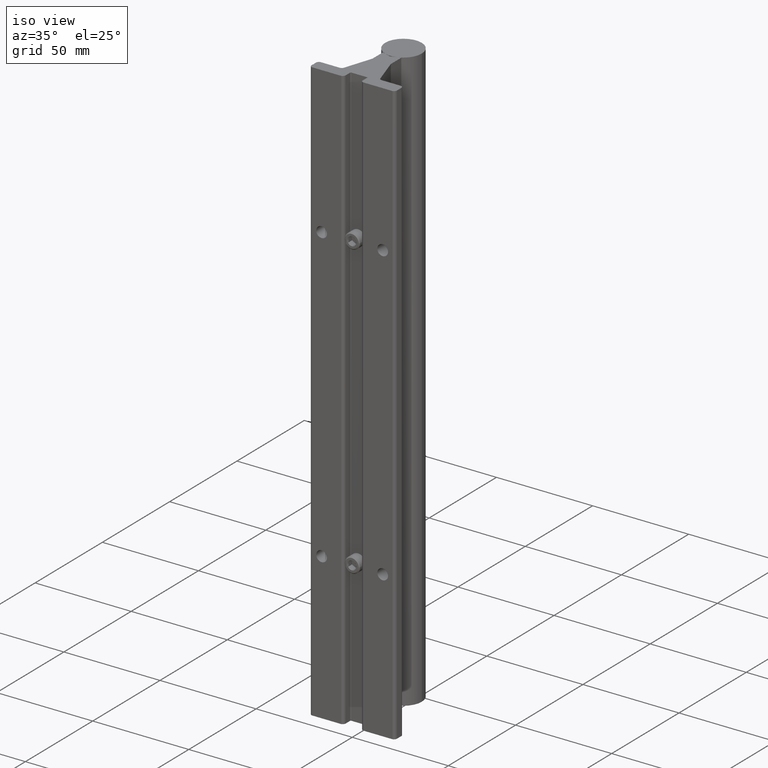
[diagram: clean part render]
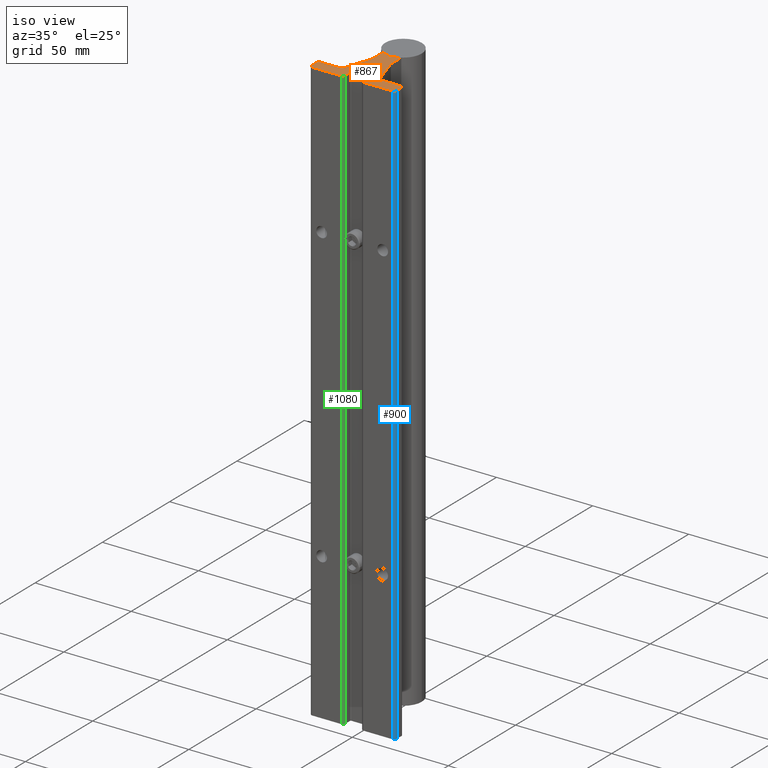
[diagram: same view with three faces highlighted in distinct colors, each labeled with its STEP entity id]
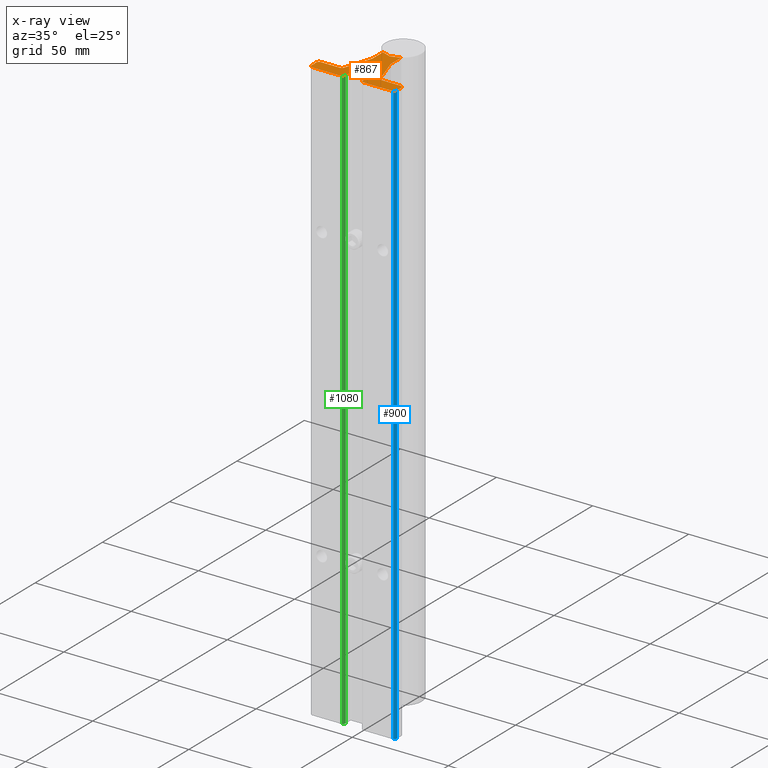
[diagram: x-ray of the same camera — body ghosted, the three highlighted faces saturated]
A machine part, iso view with three faces highlighted in distinct colors.
The next image is the same camera in x-ray (body ghosted, the three faces saturated) — at least one of them is partly hidden behind the body in this view.
Their STEP definitions:

[orange] entity #867 — the highlighted planar face has unit normal (0, 0, 1).
#21 = LINE ( 'NONE', #3294, #2389 ) ;
#28 = DIRECTION ( 'NONE',  ( 0.000000000000000000, 0.000000000000000000, 1.000000000000000000 ) ) ;
#42 = ORIENTED_EDGE ( 'NONE', *, *, #2733, .T. ) ;
#55 = EDGE_CURVE ( 'NONE', #2251, #2201, #3783, .T. ) ;
#61 = FACE_OUTER_BOUND ( 'NONE', #2354, .T. ) ;
#69 = VECTOR ( 'NONE', #1381, 39.37007874015748143 ) ;
#78 = ORIENTED_EDGE ( 'NONE', *, *, #3280, .T. ) ;
#80 = CIRCLE ( 'NONE', #2225, 0.06249999999999639871 ) ;
#85 = VERTEX_POINT ( 'NONE', #2269 ) ;
#87 = ORIENTED_EDGE ( 'NONE', *, *, #2049, .T. ) ;
#90 = EDGE_CURVE ( 'NONE', #2241, #1328, #3614, .T. ) ;
#98 = DIRECTION ( 'NONE',  ( -0.8660254037844274944, -0.5000000000000193179, 0.000000000000000000 ) ) ;
#124 = CARTESIAN_POINT ( 'NONE',  ( -0.2500000000000011657, 0.8712787930513303802, 0.000000000000000000 ) ) ;
#139 = EDGE_CURVE ( 'NONE', #3255, #2304, #594, .T. ) ;
#148 = ORIENTED_EDGE ( 'NONE', *, *, #1730, .T. ) ;
#193 = VERTEX_POINT ( 'NONE', #1819 ) ;
#226 = DIRECTION ( 'NONE',  ( 0.000000000000000000, 0.000000000000000000, 1.000000000000000000 ) ) ;
#227 = CARTESIAN_POINT ( 'NONE',  ( 0.8149999999999996136, 0.2500000000000001110, 0.000000000000000000 ) ) ;
#242 = CARTESIAN_POINT ( 'NONE',  ( -0.1875000000000001943, 1.169177754238574618, 0.000000000000000000 ) ) ;
#250 = LINE ( 'NONE', #3242, #2818 ) ;
#265 = VECTOR ( 'NONE', #3602, 39.37007874015748854 ) ;
#276 = PLANE ( 'NONE',  #3232 ) ;
#280 = AXIS2_PLACEMENT_3D ( 'NONE', #2549, #1981, #3764 ) ;
#288 = ORIENTED_EDGE ( 'NONE', *, *, #371, .T. ) ;
#323 = VECTOR ( 'NONE', #2297, 39.37007874015748143 ) ;
#325 = VERTEX_POINT ( 'NONE', #3253 ) ;
#349 = CARTESIAN_POINT ( 'NONE',  ( -0.8750000000000001110, 0.1399999999999997358, 0.000000000000000000 ) ) ;
#365 = DIRECTION ( 'NONE',  ( 1.000000000000000000, 0.000000000000000000, 0.000000000000000000 ) ) ;
#371 = EDGE_CURVE ( 'NONE', #431, #2137, #1003, .T. ) ;
#410 = EDGE_CURVE ( 'NONE', #2554, #3574, #3668, .T. ) ;
#431 = VERTEX_POINT ( 'NONE', #603 ) ;
#441 = EDGE_CURVE ( 'NONE', #753, #3348, #21, .T. ) ;
#458 = CARTESIAN_POINT ( 'NONE',  ( 0.2349999999999988487, 0.06000000000000004635, 0.000000000000000000 ) ) ;
#478 = LINE ( 'NONE', #2810, #3747 ) ;
#486 = EDGE_CURVE ( 'NONE', #325, #2300, #1384, .T. ) ;
#499 = CARTESIAN_POINT ( 'NONE',  ( -0.8255796188425061910, -1.195183497228115035E-16, 0.000000000000000000 ) ) ;
#550 = LINE ( 'NONE', #1431, #2635 ) ;
#554 = CARTESIAN_POINT ( 'NONE',  ( 0.3721172034999986056, 0.2931864378999994303, 0.000000000000000000 ) ) ;
#573 = EDGE_CURVE ( 'NONE', #2798, #2191, #694, .T. ) ;
#580 = LINE ( 'NONE', #1462, #3613 ) ;
#589 = CARTESIAN_POINT ( 'NONE',  ( 0.8255796188425064130, 0.000000000000000000, 0.000000000000000000 ) ) ;
#594 = LINE ( 'NONE', #2712, #265 ) ;
#603 = CARTESIAN_POINT ( 'NONE',  ( -0.2144787914004587515, 0.003618442752845930921, 0.000000000000000000 ) ) ;
#604 = CARTESIAN_POINT ( 'NONE',  ( -0.8650000000000009903, 0.1342264973081042367, 0.000000000000000000 ) ) ;
#623 = CARTESIAN_POINT ( 'NONE',  ( 0.1905589676999998316, 0.8519652309999988793, 0.000000000000000000 ) ) ;
#630 = AXIS2_PLACEMENT_3D ( 'NONE', #124, #3510, #2399 ) ;
#641 = CARTESIAN_POINT ( 'NONE',  ( -0.1749999999999992395, 0.1900000000000000300, -0.000000000000000000 ) ) ;
#661 = DIRECTION ( 'NONE',  ( 1.000000000000000000, 0.000000000000000000, 0.000000000000000000 ) ) ;
#694 = CIRCLE ( 'NONE', #630, 0.06250000000000069389 ) ;
#724 = DIRECTION ( 'NONE',  ( -0.000000000000000000, -0.000000000000000000, -1.000000000000000000 ) ) ;
#734 = DIRECTION ( 'NONE',  ( 0.000000000000000000, 0.000000000000000000, 1.000000000000000000 ) ) ;
#753 = VERTEX_POINT ( 'NONE', #499 ) ;
#760 = CARTESIAN_POINT ( 'NONE',  ( -0.1875000000000004718, 0.8712787932000009006, 0.000000000000000000 ) ) ;
#798 = CARTESIAN_POINT ( 'NONE',  ( 0.1749999999999989619, 0.06000000000000004635, 0.000000000000000000 ) ) ;
#821 = VERTEX_POINT ( 'NONE', #1579 ) ;
#841 = ORIENTED_EDGE ( 'NONE', *, *, #2943, .T. ) ;
#843 = DIRECTION ( 'NONE',  ( -0.3090169945051225442, 0.9510565162528571426, 0.000000000000000000 ) ) ;
#848 = LINE ( 'NONE', #242, #1660 ) ;
#867 = ADVANCED_FACE ( 'NONE', ( #61 ), #276, .T. ) ;
#886 = EDGE_CURVE ( 'NONE', #2201, #193, #1158, .T. ) ;
#904 = DIRECTION ( 'NONE',  ( 0.9396926207859096492, -0.3420201433256652712, 0.000000000000000000 ) ) ;
#945 = CARTESIAN_POINT ( 'NONE',  ( -0.8650000000000009903, 0.1342264973081042645, 0.000000000000000000 ) ) ;
#960 = CARTESIAN_POINT ( 'NONE',  ( 0.2144787914004595564, 0.003618442752845444331, 0.000000000000000000 ) ) ;
#999 = DIRECTION ( 'NONE',  ( 4.202843067175790113E-15, 1.000000000000000000, 0.000000000000000000 ) ) ;
#1001 = EDGE_CURVE ( 'NONE', #3348, #431, #1094, .T. ) ;
#1003 = CIRCLE ( 'NONE', #3479, 0.05999999999999983818 ) ;
#1025 = DIRECTION ( 'NONE',  ( -0.000000000000000000, -0.000000000000000000, -1.000000000000000000 ) ) ;
#1026 = EDGE_CURVE ( 'NONE', #3059, #3775, #1366, .T. ) ;
#1031 = CARTESIAN_POINT ( 'NONE',  ( -0.8750000000000001110, 0.1900000000000000300, 0.000000000000000000 ) ) ;
#1049 = CARTESIAN_POINT ( 'NONE',  ( -0.2244203811574920215, 0.000000000000000000, 0.000000000000000000 ) ) ;
#1051 = DIRECTION ( 'NONE',  ( 1.000000000000000000, 0.000000000000000000, 0.000000000000000000 ) ) ;
#1056 = DIRECTION ( 'NONE',  ( 2.626776916984868919E-15, 1.000000000000000000, 0.000000000000000000 ) ) ;
#1064 = CARTESIAN_POINT ( 'NONE',  ( -2.500000000000000000, 0.000000000000000000, 0.000000000000000000 ) ) ;
#1086 = VECTOR ( 'NONE', #999, 39.37007874015748143 ) ;
#1089 = DIRECTION ( 'NONE',  ( 1.000000000000000000, 0.000000000000000000, 0.000000000000000000 ) ) ;
#1094 = LINE ( 'NONE', #1049, #2028 ) ;
#1096 = VECTOR ( 'NONE', #1435, 39.37007874015748143 ) ;
#1123 = EDGE_CURVE ( 'NONE', #821, #3255, #580, .T. ) ;
#1145 = AXIS2_PLACEMENT_3D ( 'NONE', #1421, #226, #1378 ) ;
#1155 = LINE ( 'NONE', #3203, #2716 ) ;
#1158 = LINE ( 'NONE', #589, #1197 ) ;
#1197 = VECTOR ( 'NONE', #2758, 39.37007874015748143 ) ;
#1201 = CIRCLE ( 'NONE', #1145, 0.05999999999999990757 ) ;
#1208 = VECTOR ( 'NONE', #2058, 39.37007874015748143 ) ;
#1212 = VECTOR ( 'NONE', #904, 39.37007874015748854 ) ;
#1216 = CARTESIAN_POINT ( 'NONE',  ( -0.1599999999999985600, 0.1900000000000000300, 0.000000000000000000 ) ) ;
#1218 = CARTESIAN_POINT ( 'NONE',  ( -0.4315582356841831668, 0.3125000000000001665, 0.000000000000000000 ) ) ;
#1280 = CARTESIAN_POINT ( 'NONE',  ( 0.8149999999999996136, 0.2500000000000001110, 0.000000000000000000 ) ) ;
#1284 = VERTEX_POINT ( 'NONE', #3365 ) ;
#1295 = ORIENTED_EDGE ( 'NONE', *, *, #2620, .T. ) ;
#1306 = VECTOR ( 'NONE', #1925, 39.37007874015748143 ) ;
#1319 = VECTOR ( 'NONE', #2481, 39.37007874015748143 ) ;
#1323 = ORIENTED_EDGE ( 'NONE', *, *, #486, .T. ) ;
#1328 = VERTEX_POINT ( 'NONE', #1280 ) ;
#1333 = CIRCLE ( 'NONE', #2154, 0.05999999999999983818 ) ;
#1351 = DIRECTION ( 'NONE',  ( -0.000000000000000000, -0.000000000000000000, -1.000000000000000000 ) ) ;
#1360 = LINE ( 'NONE', #2678, #1208 ) ;
#1362 = CARTESIAN_POINT ( 'NONE',  ( -0.2349999999999994038, 0.06000000000000004635, 0.000000000000000000 ) ) ;
#1366 = LINE ( 'NONE', #1031, #323 ) ;
#1378 = DIRECTION ( 'NONE',  ( 1.000000000000000000, 0.000000000000000000, 0.000000000000000000 ) ) ;
#1381 = DIRECTION ( 'NONE',  ( 1.000000000000000000, 0.000000000000000000, 0.000000000000000000 ) ) ;
#1384 = CIRCLE ( 'NONE', #2910, 0.05999999999999990757 ) ;
#1388 = EDGE_CURVE ( 'NONE', #3690, #2173, #3874, .T. ) ;
#1397 = ORIENTED_EDGE ( 'NONE', *, *, #1123, .T. ) ;
#1416 = DIRECTION ( 'NONE',  ( 0.8660254037844480335, -0.4999999999999838463, 0.000000000000000000 ) ) ;
#1421 = CARTESIAN_POINT ( 'NONE',  ( 0.8149999999999993916, 0.06000000000000004635, 0.000000000000000000 ) ) ;
#1431 = CARTESIAN_POINT ( 'NONE',  ( 0.3721172034999985501, 0.2931864378999994303, 0.000000000000000000 ) ) ;
#1435 = DIRECTION ( 'NONE',  ( -1.000000000000000000, 2.671704266472630380E-16, 0.000000000000000000 ) ) ;
#1456 = CIRCLE ( 'NONE', #2152, 0.06250000000000151268 ) ;
#1458 = EDGE_CURVE ( 'NONE', #3565, #1970, #1456, .T. ) ;
#1462 = CARTESIAN_POINT ( 'NONE',  ( 0.1874999999999998335, 0.8712787932000009006, 0.000000000000000000 ) ) ;
#1468 = CARTESIAN_POINT ( 'NONE',  ( -0.8355212085995393778, 0.003618442752845341982, 0.000000000000000000 ) ) ;
#1491 = CARTESIAN_POINT ( 'NONE',  ( -0.1599999999999985600, 0.2050000000000006262, 0.000000000000000000 ) ) ;
#1542 = CARTESIAN_POINT ( 'NONE',  ( 0.8255796188425067461, 0.000000000000000000, 0.000000000000000000 ) ) ;
#1555 = VERTEX_POINT ( 'NONE', #798 ) ;
#1565 = DIRECTION ( 'NONE',  ( -0.000000000000000000, -0.000000000000000000, -1.000000000000000000 ) ) ;
#1576 = AXIS2_PLACEMENT_3D ( 'NONE', #3489, #1982, #1089 ) ;
#1579 = CARTESIAN_POINT ( 'NONE',  ( 0.1874999999999998335, 0.8712787932000009006, 0.000000000000000000 ) ) ;
#1588 = CARTESIAN_POINT ( 'NONE',  ( -0.8150000000000001688, 0.2499999999999999167, 0.000000000000000000 ) ) ;
#1598 = DIRECTION ( 'NONE',  ( 0.000000000000000000, 0.000000000000000000, 1.000000000000000000 ) ) ;
#1610 = LINE ( 'NONE', #2791, #3680 ) ;
#1645 = VERTEX_POINT ( 'NONE', #1737 ) ;
#1647 = CARTESIAN_POINT ( 'NONE',  ( -0.8355212085995393778, 0.003618442752845316395, 0.000000000000000000 ) ) ;
#1656 = ORIENTED_EDGE ( 'NONE', *, *, #139, .T. ) ;
#1660 = VECTOR ( 'NONE', #2324, 39.37007874015748143 ) ;
#1676 = LINE ( 'NONE', #3720, #1086 ) ;
#1690 = CARTESIAN_POINT ( 'NONE',  ( 0.8749999999999992228, 0.06000000000000004635, 0.000000000000000000 ) ) ;
#1717 = CIRCLE ( 'NONE', #3300, 0.01500000000000062568 ) ;
#1730 = EDGE_CURVE ( 'NONE', #3797, #3041, #1717, .T. ) ;
#1737 = CARTESIAN_POINT ( 'NONE',  ( 0.2144787914004595564, 0.003618442752845393157, 0.000000000000000000 ) ) ;
#1760 = LINE ( 'NONE', #1468, #2042 ) ;
#1773 = CARTESIAN_POINT ( 'NONE',  ( -0.8750000000000002220, 0.1099999999999997785, 0.000000000000000000 ) ) ;
#1780 = DIRECTION ( 'NONE',  ( 1.000000000000000000, 0.000000000000000000, 0.000000000000000000 ) ) ;
#1819 = CARTESIAN_POINT ( 'NONE',  ( 0.8355212085995401550, 0.003618442752845948268, 0.000000000000000000 ) ) ;
#1855 = ORIENTED_EDGE ( 'NONE', *, *, #1458, .T. ) ;
#1870 = EDGE_CURVE ( 'NONE', #2500, #2241, #1676, .T. ) ;
#1876 = ORIENTED_EDGE ( 'NONE', *, *, #1001, .T. ) ;
#1888 = ORIENTED_EDGE ( 'NONE', *, *, #90, .T. ) ;
#1892 = EDGE_CURVE ( 'NONE', #3574, #2891, #1610, .T. ) ;
#1906 = ORIENTED_EDGE ( 'NONE', *, *, #3161, .T. ) ;
#1925 = DIRECTION ( 'NONE',  ( -1.000000000000000000, -3.027931502002314364E-15, 0.000000000000000000 ) ) ;
#1933 = CARTESIAN_POINT ( 'NONE',  ( -2.731847993664263218E-16, 1.100933335338573960, 0.000000000000000000 ) ) ;
#1936 = DIRECTION ( 'NONE',  ( 1.000000000000000000, 0.000000000000000000, 0.000000000000000000 ) ) ;
#1946 = EDGE_CURVE ( 'NONE', #2304, #85, #2519, .T. ) ;
#1948 = DIRECTION ( 'NONE',  ( 1.000000000000000000, 0.000000000000000000, 0.000000000000000000 ) ) ;
#1970 = VERTEX_POINT ( 'NONE', #554 ) ;
#1973 = DIRECTION ( 'NONE',  ( 0.000000000000000000, 0.000000000000000000, 1.000000000000000000 ) ) ;
#1981 = DIRECTION ( 'NONE',  ( 0.000000000000000000, 0.000000000000000000, 1.000000000000000000 ) ) ;
#1982 = DIRECTION ( 'NONE',  ( 0.000000000000000000, 0.000000000000000000, 1.000000000000000000 ) ) ;
#1986 = ORIENTED_EDGE ( 'NONE', *, *, #55, .T. ) ;
#1992 = CARTESIAN_POINT ( 'NONE',  ( -0.3721172034000003737, 0.2931864378999993193, 0.000000000000000000 ) ) ;
#2023 = ORIENTED_EDGE ( 'NONE', *, *, #3610, .T. ) ;
#2028 = VECTOR ( 'NONE', #2532, 39.37007874015748143 ) ;
#2042 = VECTOR ( 'NONE', #3651, 39.37007874015748143 ) ;
#2049 = EDGE_CURVE ( 'NONE', #193, #2500, #1201, .T. ) ;
#2058 = DIRECTION ( 'NONE',  ( 3.152132300381842388E-15, -1.000000000000000000, 0.000000000000000000 ) ) ;
#2099 = CARTESIAN_POINT ( 'NONE',  ( 0.1599999999999980327, 0.2050000000000004041, 0.000000000000000000 ) ) ;
#2101 = AXIS2_PLACEMENT_3D ( 'NONE', #3121, #724, #365 ) ;
#2137 = VERTEX_POINT ( 'NONE', #2709 ) ;
#2145 = CARTESIAN_POINT ( 'NONE',  ( -0.2244203811574921603, 0.000000000000000000, 0.000000000000000000 ) ) ;
#2152 = AXIS2_PLACEMENT_3D ( 'NONE', #2846, #1025, #2871 ) ;
#2154 = AXIS2_PLACEMENT_3D ( 'NONE', #458, #1973, #1948 ) ;
#2173 = VERTEX_POINT ( 'NONE', #2456 ) ;
#2174 = VERTEX_POINT ( 'NONE', #623 ) ;
#2183 = CARTESIAN_POINT ( 'NONE',  ( -2.731847993664263218E-16, 1.100933335338573960, 0.000000000000000000 ) ) ;
#2191 = VERTEX_POINT ( 'NONE', #3319 ) ;
#2201 = VERTEX_POINT ( 'NONE', #1542 ) ;
#2219 = ORIENTED_EDGE ( 'NONE', *, *, #410, .T. ) ;
#2225 = AXIS2_PLACEMENT_3D ( 'NONE', #3587, #1351, #1051 ) ;
#2241 = VERTEX_POINT ( 'NONE', #3003 ) ;
#2251 = VERTEX_POINT ( 'NONE', #3021 ) ;
#2266 = CARTESIAN_POINT ( 'NONE',  ( -0.1599999999999985600, 0.2050000000000006539, 0.000000000000000000 ) ) ;
#2269 = CARTESIAN_POINT ( 'NONE',  ( -0.1875000000000001943, 1.169177754238574618, 0.000000000000000000 ) ) ;
#2296 = ORIENTED_EDGE ( 'NONE', *, *, #3505, .T. ) ;
#2297 = DIRECTION ( 'NONE',  ( 0.000000000000000000, -1.000000000000000000, 0.000000000000000000 ) ) ;
#2300 = VERTEX_POINT ( 'NONE', #1647 ) ;
#2304 = VERTEX_POINT ( 'NONE', #2183 ) ;
#2324 = DIRECTION ( 'NONE',  ( -9.170384428801442724E-16, -1.000000000000000000, 0.000000000000000000 ) ) ;
#2354 = EDGE_LOOP ( 'NONE', ( #1295, #3214, #1876, #288, #2296, #148, #2953, #42, #2433, #3192, #2475, #1986, #3198, #87, #2840, #1888, #78, #1855, #2023, #2562, #1397, #1656, #3635, #2996, #3743, #841, #3397, #3827, #1906, #3363, #2507, #2219, #3921, #3712, #1323 ) ) ;
#2376 = CARTESIAN_POINT ( 'NONE',  ( -0.8150000000000001688, 0.06000000000000004635, 0.000000000000000000 ) ) ;
#2389 = VECTOR ( 'NONE', #1780, 39.37007874015748143 ) ;
#2399 = DIRECTION ( 'NONE',  ( 1.000000000000000000, 0.000000000000000000, 0.000000000000000000 ) ) ;
#2424 = EDGE_CURVE ( 'NONE', #3775, #2554, #1155, .T. ) ;
#2425 = DIRECTION ( 'NONE',  ( 1.000000000000000000, 0.000000000000000000, 0.000000000000000000 ) ) ;
#2433 = ORIENTED_EDGE ( 'NONE', *, *, #3212, .T. ) ;
#2456 = CARTESIAN_POINT ( 'NONE',  ( -0.4315582357000016800, 0.2500000000000011657, 0.000000000000000000 ) ) ;
#2459 = DIRECTION ( 'NONE',  ( 1.000000000000000000, 0.000000000000000000, 0.000000000000000000 ) ) ;
#2461 = CARTESIAN_POINT ( 'NONE',  ( -0.1905589677000024129, 0.8519652309999998785, 0.000000000000000000 ) ) ;
#2465 = VECTOR ( 'NONE', #3146, 39.37007874015748854 ) ;
#2475 = ORIENTED_EDGE ( 'NONE', *, *, #3431, .T. ) ;
#2481 = DIRECTION ( 'NONE',  ( 1.000000000000000000, -6.402768735150685389E-16, 0.000000000000000000 ) ) ;
#2500 = VERTEX_POINT ( 'NONE', #1690 ) ;
#2507 = ORIENTED_EDGE ( 'NONE', *, *, #2424, .T. ) ;
#2519 = LINE ( 'NONE', #1933, #2465 ) ;
#2532 = DIRECTION ( 'NONE',  ( 0.9396926207859066515, 0.3420201433256734314, 0.000000000000000000 ) ) ;
#2549 = CARTESIAN_POINT ( 'NONE',  ( -0.8150000000000001688, 0.1900000000000000300, 0.000000000000000000 ) ) ;
#2554 = VERTEX_POINT ( 'NONE', #604 ) ;
#2558 = CARTESIAN_POINT ( 'NONE',  ( -0.4315582357000016800, 0.2500000000000011102, 0.000000000000000000 ) ) ;
#2562 = ORIENTED_EDGE ( 'NONE', *, *, #2870, .T. ) ;
#2611 = CIRCLE ( 'NONE', #280, 0.05999999999999990757 ) ;
#2620 = EDGE_CURVE ( 'NONE', #2300, #753, #1760, .T. ) ;
#2634 = DIRECTION ( 'NONE',  ( 0.000000000000000000, -1.000000000000000000, 0.000000000000000000 ) ) ;
#2635 = VECTOR ( 'NONE', #843, 39.37007874015748854 ) ;
#2645 = VECTOR ( 'NONE', #2995, 39.37007874015748143 ) ;
#2678 = CARTESIAN_POINT ( 'NONE',  ( 0.1749999999999985456, 0.1900000000000000300, 0.000000000000000000 ) ) ;
#2709 = CARTESIAN_POINT ( 'NONE',  ( -0.1749999999999995726, 0.06000000000000004635, 0.000000000000000000 ) ) ;
#2712 = CARTESIAN_POINT ( 'NONE',  ( 0.1874999999999996947, 1.169177754238574174, 0.000000000000000000 ) ) ;
#2716 = VECTOR ( 'NONE', #1416, 39.37007874015748143 ) ;
#2733 = EDGE_CURVE ( 'NONE', #2814, #1284, #3245, .T. ) ;
#2758 = DIRECTION ( 'NONE',  ( 0.9396926207859090940, 0.3420201433256666590, 0.000000000000000000 ) ) ;
#2781 = DIRECTION ( 'NONE',  ( 1.000000000000000000, 0.000000000000000000, -0.000000000000000000 ) ) ;
#2784 = LINE ( 'NONE', #2558, #1306 ) ;
#2791 = CARTESIAN_POINT ( 'NONE',  ( -0.8650000000000009903, 0.1157735026918958049, 0.000000000000000000 ) ) ;
#2798 = VERTEX_POINT ( 'NONE', #760 ) ;
#2810 = CARTESIAN_POINT ( 'NONE',  ( -0.1749999999999995726, 0.06000000000000004635, 0.000000000000000000 ) ) ;
#2814 = VERTEX_POINT ( 'NONE', #2099 ) ;
#2818 = VECTOR ( 'NONE', #2634, 39.37007874015748143 ) ;
#2840 = ORIENTED_EDGE ( 'NONE', *, *, #1870, .T. ) ;
#2846 = CARTESIAN_POINT ( 'NONE',  ( 0.4315582357841835637, 0.3125000000000017764, 0.000000000000000000 ) ) ;
#2861 = CARTESIAN_POINT ( 'NONE',  ( -0.8650000000000009903, 0.1157735026918958049, 0.000000000000000000 ) ) ;
#2870 = EDGE_CURVE ( 'NONE', #2174, #821, #80, .T. ) ;
#2871 = DIRECTION ( 'NONE',  ( 1.000000000000000000, 0.000000000000000000, 0.000000000000000000 ) ) ;
#2891 = VERTEX_POINT ( 'NONE', #1773 ) ;
#2910 = AXIS2_PLACEMENT_3D ( 'NONE', #2376, #28, #661 ) ;
#2943 = EDGE_CURVE ( 'NONE', #2191, #3690, #3340, .T. ) ;
#2953 = ORIENTED_EDGE ( 'NONE', *, *, #2986, .T. ) ;
#2961 = LINE ( 'NONE', #227, #1096 ) ;
#2986 = EDGE_CURVE ( 'NONE', #3041, #2814, #3682, .T. ) ;
#2995 = DIRECTION ( 'NONE',  ( 0.000000000000000000, -1.000000000000000000, 0.000000000000000000 ) ) ;
#2996 = ORIENTED_EDGE ( 'NONE', *, *, #3312, .T. ) ;
#3003 = CARTESIAN_POINT ( 'NONE',  ( 0.8749999999999997780, 0.1900000000000000300, 0.000000000000000000 ) ) ;
#3021 = CARTESIAN_POINT ( 'NONE',  ( 0.2244203811574911334, 1.109813247426106994E-16, 0.000000000000000000 ) ) ;
#3041 = VERTEX_POINT ( 'NONE', #2266 ) ;
#3050 = DIRECTION ( 'NONE',  ( -0.000000000000000000, -0.000000000000000000, -1.000000000000000000 ) ) ;
#3059 = VERTEX_POINT ( 'NONE', #3147 ) ;
#3121 = CARTESIAN_POINT ( 'NONE',  ( 0.1599999999999980327, 0.1900000000000000300, 0.000000000000000000 ) ) ;
#3146 = DIRECTION ( 'NONE',  ( -0.9396926208260354407, 0.3420201432154202914, 0.000000000000000000 ) ) ;
#3147 = CARTESIAN_POINT ( 'NONE',  ( -0.8750000000000001110, 0.1900000000000000300, 0.000000000000000000 ) ) ;
#3161 = EDGE_CURVE ( 'NONE', #3542, #3059, #2611, .T. ) ;
#3192 = ORIENTED_EDGE ( 'NONE', *, *, #3506, .T. ) ;
#3198 = ORIENTED_EDGE ( 'NONE', *, *, #886, .T. ) ;
#3203 = CARTESIAN_POINT ( 'NONE',  ( -0.8750000000000001110, 0.1399999999999997358, 0.000000000000000000 ) ) ;
#3212 = EDGE_CURVE ( 'NONE', #1284, #1555, #1360, .T. ) ;
#3214 = ORIENTED_EDGE ( 'NONE', *, *, #441, .T. ) ;
#3232 = AXIS2_PLACEMENT_3D ( 'NONE', #3597, #1598, #2781 ) ;
#3242 = CARTESIAN_POINT ( 'NONE',  ( -0.8750000000000001110, 0.1099999999999997785, 0.000000000000000000 ) ) ;
#3245 = CIRCLE ( 'NONE', #2101, 0.01500000000000045394 ) ;
#3253 = CARTESIAN_POINT ( 'NONE',  ( -0.8750000000000001110, 0.06000000000000004635, 0.000000000000000000 ) ) ;
#3255 = VERTEX_POINT ( 'NONE', #3545 ) ;
#3280 = EDGE_CURVE ( 'NONE', #1328, #3565, #2961, .T. ) ;
#3294 = CARTESIAN_POINT ( 'NONE',  ( -2.500000000000000000, 0.000000000000000000, 0.000000000000000000 ) ) ;
#3300 = AXIS2_PLACEMENT_3D ( 'NONE', #1216, #1565, #2459 ) ;
#3312 = EDGE_CURVE ( 'NONE', #85, #2798, #848, .T. ) ;
#3319 = CARTESIAN_POINT ( 'NONE',  ( -0.1905589677000024129, 0.8519652309999998785, 0.000000000000000000 ) ) ;
#3340 = LINE ( 'NONE', #2461, #3538 ) ;
#3348 = VERTEX_POINT ( 'NONE', #2145 ) ;
#3363 = ORIENTED_EDGE ( 'NONE', *, *, #1026, .T. ) ;
#3365 = CARTESIAN_POINT ( 'NONE',  ( 0.1749999999999984623, 0.1900000000000000300, 0.000000000000000000 ) ) ;
#3384 = DIRECTION ( 'NONE',  ( -0.3090169943511710260, -0.9510565163028790181, 0.000000000000000000 ) ) ;
#3397 = ORIENTED_EDGE ( 'NONE', *, *, #1388, .T. ) ;
#3431 = EDGE_CURVE ( 'NONE', #1645, #2251, #3623, .T. ) ;
#3479 = AXIS2_PLACEMENT_3D ( 'NONE', #1362, #734, #1936 ) ;
#3489 = CARTESIAN_POINT ( 'NONE',  ( 0.8149999999999996136, 0.1900000000000000300, 0.000000000000000000 ) ) ;
#3505 = EDGE_CURVE ( 'NONE', #2137, #3797, #478, .T. ) ;
#3506 = EDGE_CURVE ( 'NONE', #1555, #1645, #1333, .T. ) ;
#3510 = DIRECTION ( 'NONE',  ( -0.000000000000000000, -0.000000000000000000, -1.000000000000000000 ) ) ;
#3538 = VECTOR ( 'NONE', #3384, 39.37007874015748143 ) ;
#3542 = VERTEX_POINT ( 'NONE', #1588 ) ;
#3545 = CARTESIAN_POINT ( 'NONE',  ( 0.1874999999999996947, 1.169177754238574396, 0.000000000000000000 ) ) ;
#3556 = AXIS2_PLACEMENT_3D ( 'NONE', #1218, #3050, #2425 ) ;
#3565 = VERTEX_POINT ( 'NONE', #3701 ) ;
#3573 = DIRECTION ( 'NONE',  ( -4.585192214400725306E-16, 1.000000000000000000, 0.000000000000000000 ) ) ;
#3574 = VERTEX_POINT ( 'NONE', #2861 ) ;
#3587 = CARTESIAN_POINT ( 'NONE',  ( 0.2499999999999962530, 0.8712787930513227197, 0.000000000000000000 ) ) ;
#3597 = CARTESIAN_POINT ( 'NONE',  ( 0.000000000000000000, 0.000000000000000000, 0.000000000000000000 ) ) ;
#3602 = DIRECTION ( 'NONE',  ( -0.9396926208260359958, -0.3420201432154190146, 0.000000000000000000 ) ) ;
#3610 = EDGE_CURVE ( 'NONE', #1970, #2174, #550, .T. ) ;
#3613 = VECTOR ( 'NONE', #3573, 39.37007874015748143 ) ;
#3614 = CIRCLE ( 'NONE', #1576, 0.06000000000000017819 ) ;
#3623 = LINE ( 'NONE', #960, #1212 ) ;
#3635 = ORIENTED_EDGE ( 'NONE', *, *, #1946, .T. ) ;
#3646 = EDGE_CURVE ( 'NONE', #2891, #325, #250, .T. ) ;
#3651 = DIRECTION ( 'NONE',  ( 0.9396926207859157554, -0.3420201433256484513, 0.000000000000000000 ) ) ;
#3668 = LINE ( 'NONE', #945, #2645 ) ;
#3680 = VECTOR ( 'NONE', #98, 39.37007874015748854 ) ;
#3682 = LINE ( 'NONE', #1491, #1319 ) ;
#3690 = VERTEX_POINT ( 'NONE', #1992 ) ;
#3701 = CARTESIAN_POINT ( 'NONE',  ( 0.4315582357000011249, 0.2500000000000002776, 0.000000000000000000 ) ) ;
#3712 = ORIENTED_EDGE ( 'NONE', *, *, #3646, .T. ) ;
#3720 = CARTESIAN_POINT ( 'NONE',  ( 0.8749999999999992228, 0.06000000000000004635, 0.000000000000000000 ) ) ;
#3743 = ORIENTED_EDGE ( 'NONE', *, *, #573, .T. ) ;
#3747 = VECTOR ( 'NONE', #1056, 39.37007874015748143 ) ;
#3764 = DIRECTION ( 'NONE',  ( 1.000000000000000000, 0.000000000000000000, 0.000000000000000000 ) ) ;
#3775 = VERTEX_POINT ( 'NONE', #349 ) ;
#3783 = LINE ( 'NONE', #1064, #69 ) ;
#3797 = VERTEX_POINT ( 'NONE', #641 ) ;
#3827 = ORIENTED_EDGE ( 'NONE', *, *, #3856, .T. ) ;
#3856 = EDGE_CURVE ( 'NONE', #2173, #3542, #2784, .T. ) ;
#3874 = CIRCLE ( 'NONE', #3556, 0.06249999999999892447 ) ;
#3921 = ORIENTED_EDGE ( 'NONE', *, *, #1892, .T. ) ;

[blue] entity #900 — the highlighted cylindrical surface (edge-blend (fillet) strip) has radius 1.524 mm, axis along (0, 0, 1).
#8 = EDGE_CURVE ( 'NONE', #125, #2500, #2610, .T. ) ;
#115 = DIRECTION ( 'NONE',  ( 1.000000000000000000, 0.000000000000000000, 0.000000000000000000 ) ) ;
#125 = VERTEX_POINT ( 'NONE', #3528 ) ;
#193 = VERTEX_POINT ( 'NONE', #1819 ) ;
#226 = DIRECTION ( 'NONE',  ( 0.000000000000000000, 0.000000000000000000, 1.000000000000000000 ) ) ;
#228 = EDGE_CURVE ( 'NONE', #1809, #193, #314, .T. ) ;
#238 = EDGE_CURVE ( 'NONE', #125, #1809, #2517, .T. ) ;
#281 = CARTESIAN_POINT ( 'NONE',  ( 0.8355212085995401550, 0.003618442752846007682, -14.10463218188033174 ) ) ;
#314 = LINE ( 'NONE', #281, #756 ) ;
#324 = EDGE_LOOP ( 'NONE', ( #3110, #2007, #3223, #2298 ) ) ;
#704 = CARTESIAN_POINT ( 'NONE',  ( 0.8149999999999993916, 0.06000000000000004635, -12.00000000000000178 ) ) ;
#756 = VECTOR ( 'NONE', #3569, 39.37007874015748143 ) ;
#824 = AXIS2_PLACEMENT_3D ( 'NONE', #704, #1608, #115 ) ;
#900 = ADVANCED_FACE ( 'NONE', ( #989 ), #970, .T. ) ;
#970 = CYLINDRICAL_SURFACE ( 'NONE', #3736, 0.05999999999999990757 ) ;
#989 = FACE_OUTER_BOUND ( 'NONE', #324, .T. ) ;
#1145 = AXIS2_PLACEMENT_3D ( 'NONE', #1421, #226, #1378 ) ;
#1201 = CIRCLE ( 'NONE', #1145, 0.05999999999999990757 ) ;
#1378 = DIRECTION ( 'NONE',  ( 1.000000000000000000, 0.000000000000000000, 0.000000000000000000 ) ) ;
#1421 = CARTESIAN_POINT ( 'NONE',  ( 0.8149999999999993916, 0.06000000000000004635, 0.000000000000000000 ) ) ;
#1608 = DIRECTION ( 'NONE',  ( -0.000000000000000000, -0.000000000000000000, -1.000000000000000000 ) ) ;
#1678 = DIRECTION ( 'NONE',  ( 0.000000000000000000, 0.000000000000000000, 1.000000000000000000 ) ) ;
#1690 = CARTESIAN_POINT ( 'NONE',  ( 0.8749999999999992228, 0.06000000000000004635, 0.000000000000000000 ) ) ;
#1786 = DIRECTION ( 'NONE',  ( 0.000000000000000000, 0.000000000000000000, 1.000000000000000000 ) ) ;
#1809 = VERTEX_POINT ( 'NONE', #3168 ) ;
#1819 = CARTESIAN_POINT ( 'NONE',  ( 0.8355212085995401550, 0.003618442752845948268, 0.000000000000000000 ) ) ;
#2007 = ORIENTED_EDGE ( 'NONE', *, *, #8, .T. ) ;
#2049 = EDGE_CURVE ( 'NONE', #193, #2500, #1201, .T. ) ;
#2157 = DIRECTION ( 'NONE',  ( 1.000000000000000000, 0.000000000000000000, 0.000000000000000000 ) ) ;
#2177 = CARTESIAN_POINT ( 'NONE',  ( 0.8149999999999993916, 0.06000000000000004635, -14.10463218188033174 ) ) ;
#2298 = ORIENTED_EDGE ( 'NONE', *, *, #228, .F. ) ;
#2500 = VERTEX_POINT ( 'NONE', #1690 ) ;
#2517 = CIRCLE ( 'NONE', #824, 0.05999999999999990757 ) ;
#2610 = LINE ( 'NONE', #3249, #3491 ) ;
#3110 = ORIENTED_EDGE ( 'NONE', *, *, #238, .F. ) ;
#3168 = CARTESIAN_POINT ( 'NONE',  ( 0.8355212085995401550, 0.003618442752846028065, -12.00000000000000178 ) ) ;
#3223 = ORIENTED_EDGE ( 'NONE', *, *, #2049, .F. ) ;
#3249 = CARTESIAN_POINT ( 'NONE',  ( 0.8749999999999992228, 0.06000000000000004635, -14.10463218188033174 ) ) ;
#3491 = VECTOR ( 'NONE', #1678, 39.37007874015748143 ) ;
#3528 = CARTESIAN_POINT ( 'NONE',  ( 0.8749999999999992228, 0.06000000000000004635, -12.00000000000000178 ) ) ;
#3569 = DIRECTION ( 'NONE',  ( 0.000000000000000000, 0.000000000000000000, 1.000000000000000000 ) ) ;
#3736 = AXIS2_PLACEMENT_3D ( 'NONE', #2177, #1786, #2157 ) ;

[green] entity #1080 — the highlighted cylindrical surface (edge-blend (fillet) strip) has radius 1.524 mm, axis along (0, 0, 1).
#79 = EDGE_LOOP ( 'NONE', ( #3533, #2512, #3264, #2260 ) ) ;
#190 = EDGE_CURVE ( 'NONE', #2941, #2137, #1770, .T. ) ;
#339 = CARTESIAN_POINT ( 'NONE',  ( -0.1749999999999995726, 0.06000000000000004635, -14.10463218188033174 ) ) ;
#371 = EDGE_CURVE ( 'NONE', #431, #2137, #1003, .T. ) ;
#403 = AXIS2_PLACEMENT_3D ( 'NONE', #2351, #3889, #3604 ) ;
#431 = VERTEX_POINT ( 'NONE', #603 ) ;
#603 = CARTESIAN_POINT ( 'NONE',  ( -0.2144787914004587515, 0.003618442752845930921, 0.000000000000000000 ) ) ;
#734 = DIRECTION ( 'NONE',  ( 0.000000000000000000, 0.000000000000000000, 1.000000000000000000 ) ) ;
#1003 = CIRCLE ( 'NONE', #3479, 0.05999999999999983818 ) ;
#1080 = ADVANCED_FACE ( 'NONE', ( #3588 ), #2968, .T. ) ;
#1181 = CARTESIAN_POINT ( 'NONE',  ( -0.2349999999999994038, 0.06000000000000004635, -14.10463218188033174 ) ) ;
#1362 = CARTESIAN_POINT ( 'NONE',  ( -0.2349999999999994038, 0.06000000000000004635, 0.000000000000000000 ) ) ;
#1504 = DIRECTION ( 'NONE',  ( 0.000000000000000000, 0.000000000000000000, 1.000000000000000000 ) ) ;
#1703 = DIRECTION ( 'NONE',  ( 1.000000000000000000, 0.000000000000000000, 0.000000000000000000 ) ) ;
#1770 = LINE ( 'NONE', #339, #2699 ) ;
#1903 = CARTESIAN_POINT ( 'NONE',  ( -0.2144787914004587515, 0.003618442752845934824, -12.00000000000000178 ) ) ;
#1936 = DIRECTION ( 'NONE',  ( 1.000000000000000000, 0.000000000000000000, 0.000000000000000000 ) ) ;
#2117 = EDGE_CURVE ( 'NONE', #2676, #431, #2730, .T. ) ;
#2137 = VERTEX_POINT ( 'NONE', #2709 ) ;
#2155 = VECTOR ( 'NONE', #2418, 39.37007874015748143 ) ;
#2260 = ORIENTED_EDGE ( 'NONE', *, *, #2117, .F. ) ;
#2338 = AXIS2_PLACEMENT_3D ( 'NONE', #1181, #2366, #1703 ) ;
#2351 = CARTESIAN_POINT ( 'NONE',  ( -0.2349999999999994038, 0.06000000000000004635, -12.00000000000000178 ) ) ;
#2366 = DIRECTION ( 'NONE',  ( 0.000000000000000000, 0.000000000000000000, 1.000000000000000000 ) ) ;
#2418 = DIRECTION ( 'NONE',  ( 0.000000000000000000, 0.000000000000000000, 1.000000000000000000 ) ) ;
#2512 = ORIENTED_EDGE ( 'NONE', *, *, #190, .T. ) ;
#2676 = VERTEX_POINT ( 'NONE', #1903 ) ;
#2699 = VECTOR ( 'NONE', #1504, 39.37007874015748143 ) ;
#2709 = CARTESIAN_POINT ( 'NONE',  ( -0.1749999999999995726, 0.06000000000000004635, 0.000000000000000000 ) ) ;
#2730 = LINE ( 'NONE', #3915, #2155 ) ;
#2751 = CARTESIAN_POINT ( 'NONE',  ( -0.1749999999999995726, 0.06000000000000004635, -12.00000000000000178 ) ) ;
#2833 = EDGE_CURVE ( 'NONE', #2941, #2676, #3750, .T. ) ;
#2941 = VERTEX_POINT ( 'NONE', #2751 ) ;
#2968 = CYLINDRICAL_SURFACE ( 'NONE', #2338, 0.05999999999999983818 ) ;
#3264 = ORIENTED_EDGE ( 'NONE', *, *, #371, .F. ) ;
#3479 = AXIS2_PLACEMENT_3D ( 'NONE', #1362, #734, #1936 ) ;
#3533 = ORIENTED_EDGE ( 'NONE', *, *, #2833, .F. ) ;
#3588 = FACE_OUTER_BOUND ( 'NONE', #79, .T. ) ;
#3604 = DIRECTION ( 'NONE',  ( 1.000000000000000000, 0.000000000000000000, 0.000000000000000000 ) ) ;
#3750 = CIRCLE ( 'NONE', #403, 0.05999999999999983818 ) ;
#3889 = DIRECTION ( 'NONE',  ( -0.000000000000000000, -0.000000000000000000, -1.000000000000000000 ) ) ;
#3915 = CARTESIAN_POINT ( 'NONE',  ( -0.2144787914004587515, 0.003618442752845939595, -14.10463218188033174 ) ) ;